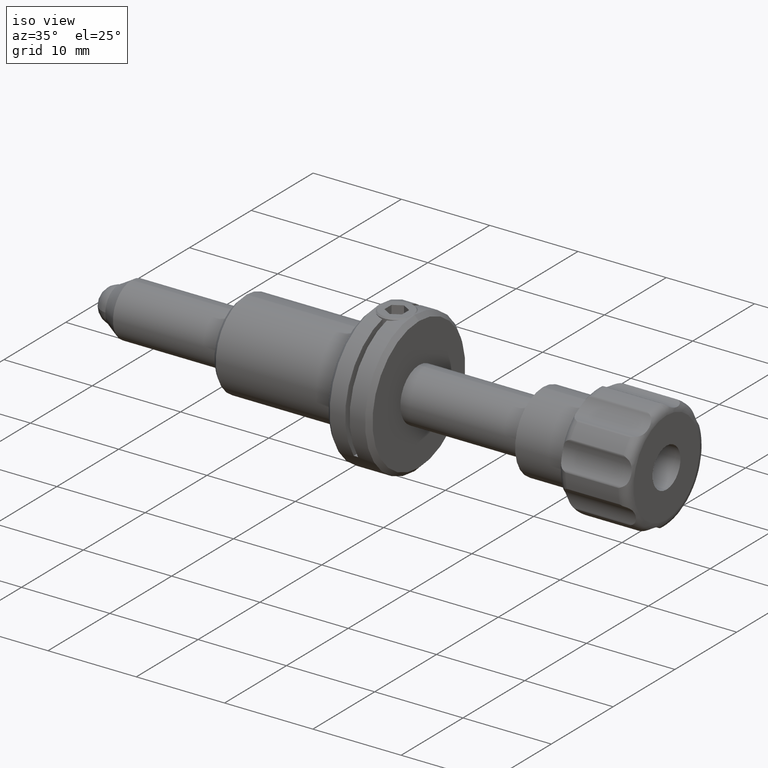
[diagram: clean part render]
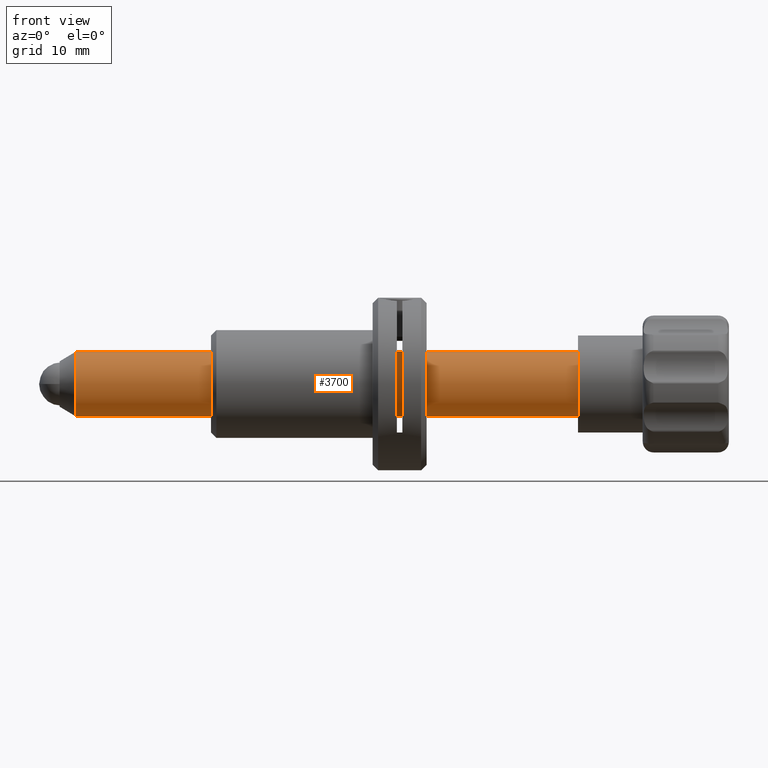
[diagram: tour spotlight — one face highlighted and labeled with its STEP entity id]
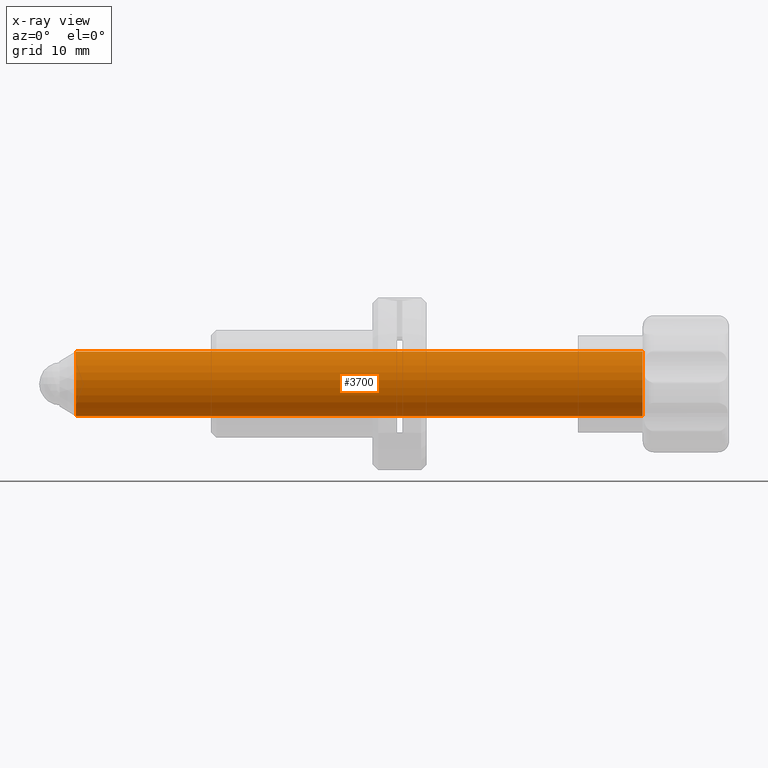
[diagram: x-ray of the same camera — body ghosted, this tour face saturated]
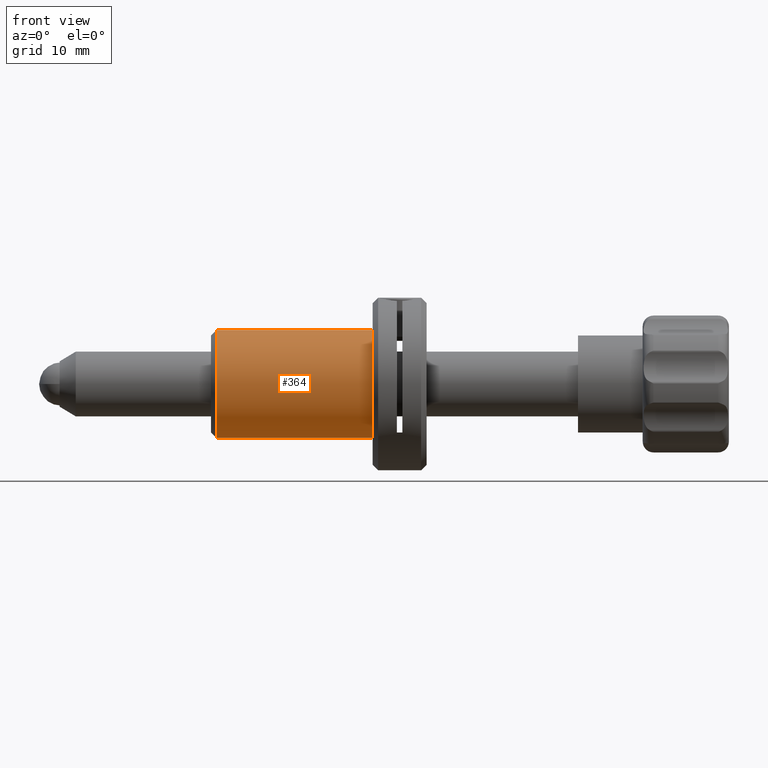
[diagram: tour spotlight — one face highlighted and labeled with its STEP entity id]
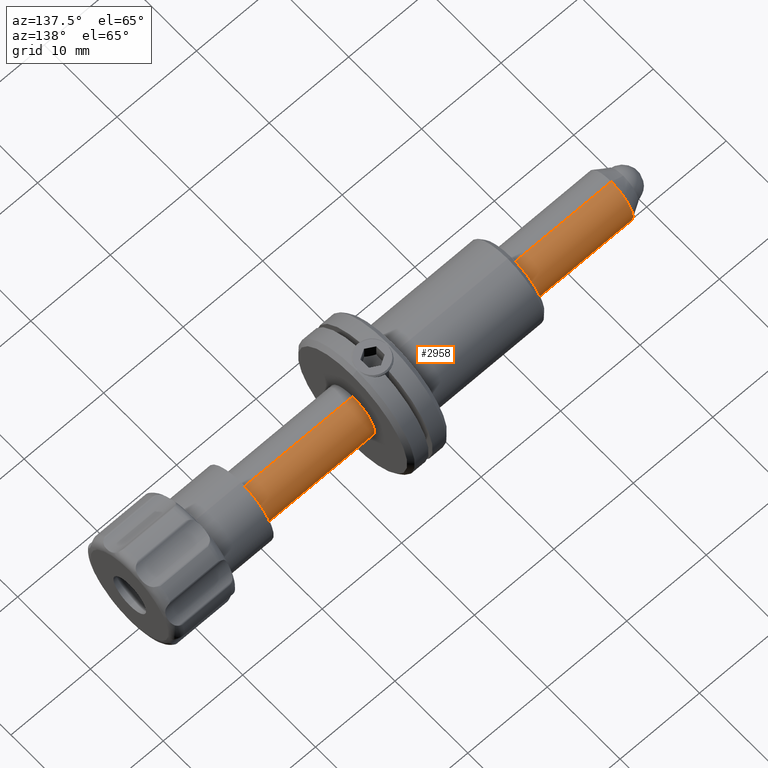
[diagram: tour spotlight — one face highlighted and labeled with its STEP entity id]
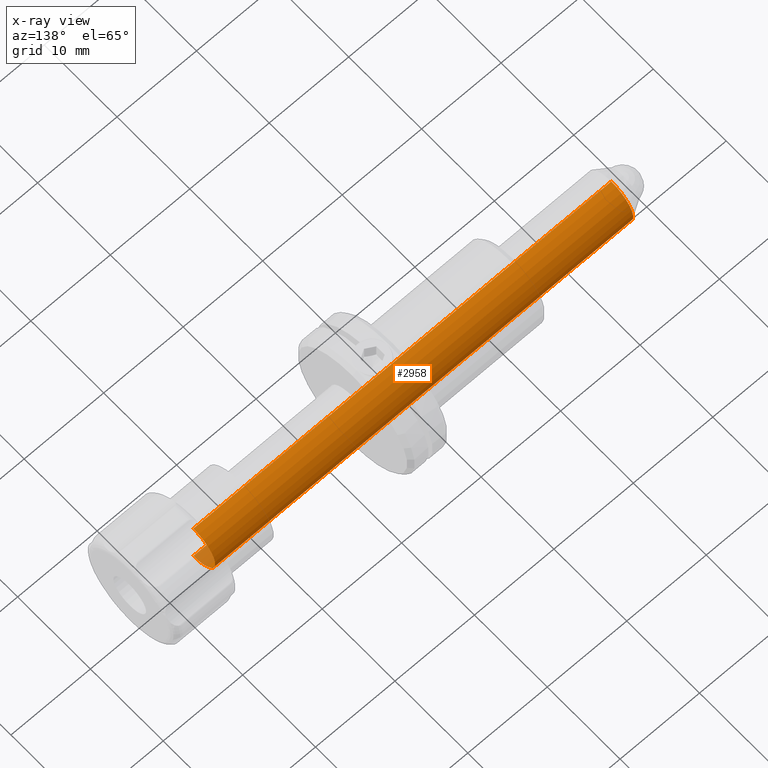
[diagram: x-ray of the same camera — body ghosted, this tour face saturated]
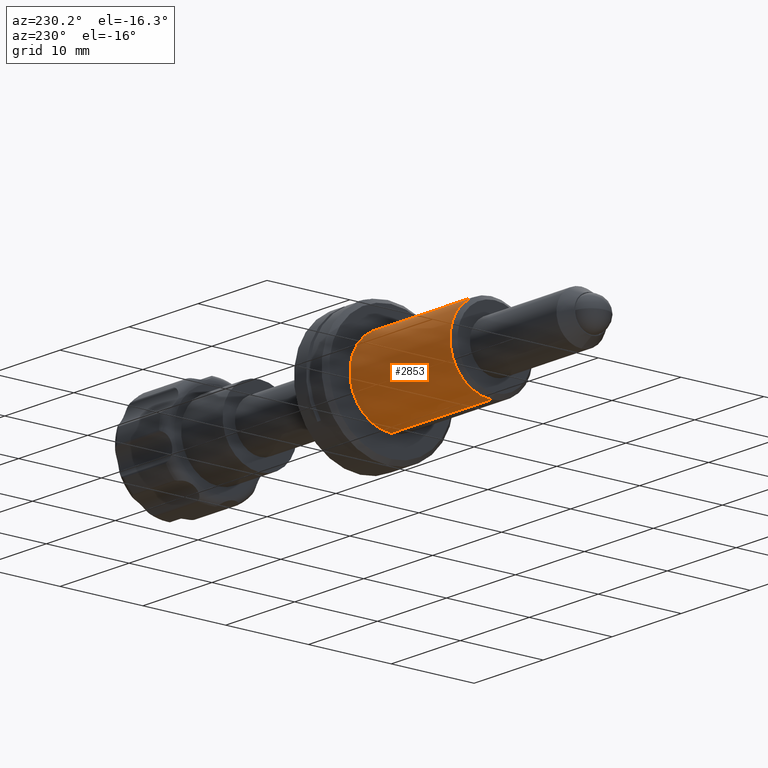
[diagram: tour spotlight — one face highlighted and labeled with its STEP entity id]
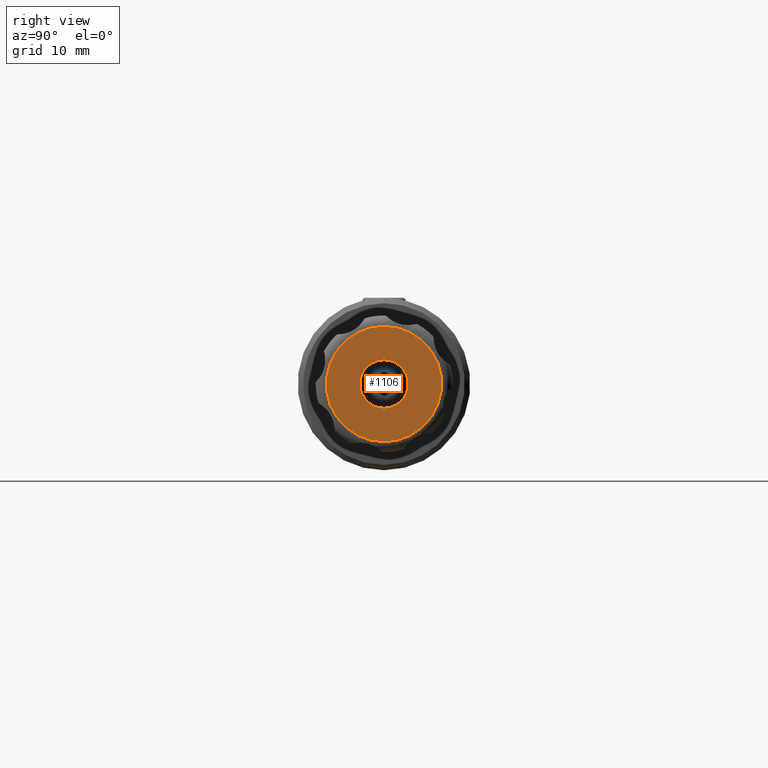
[diagram: tour spotlight — one face highlighted and labeled with its STEP entity id]
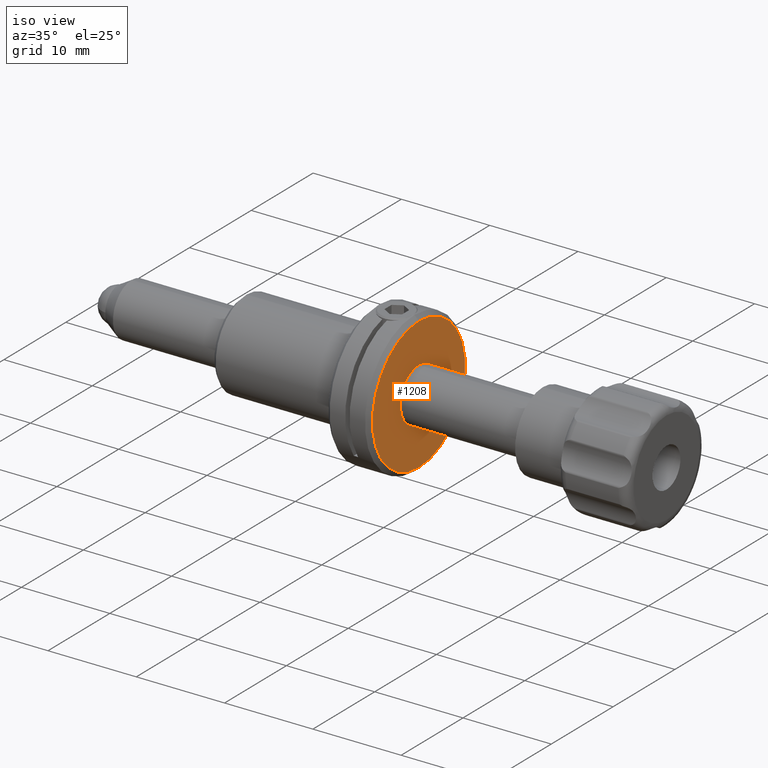
[diagram: tour spotlight — one face highlighted and labeled with its STEP entity id]
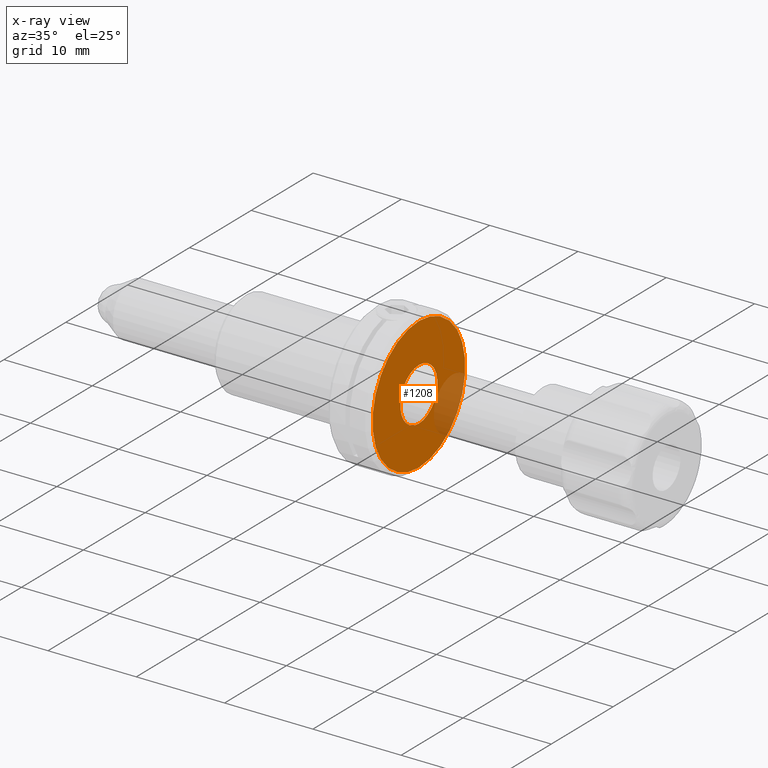
[diagram: x-ray of the same camera — body ghosted, this tour face saturated]
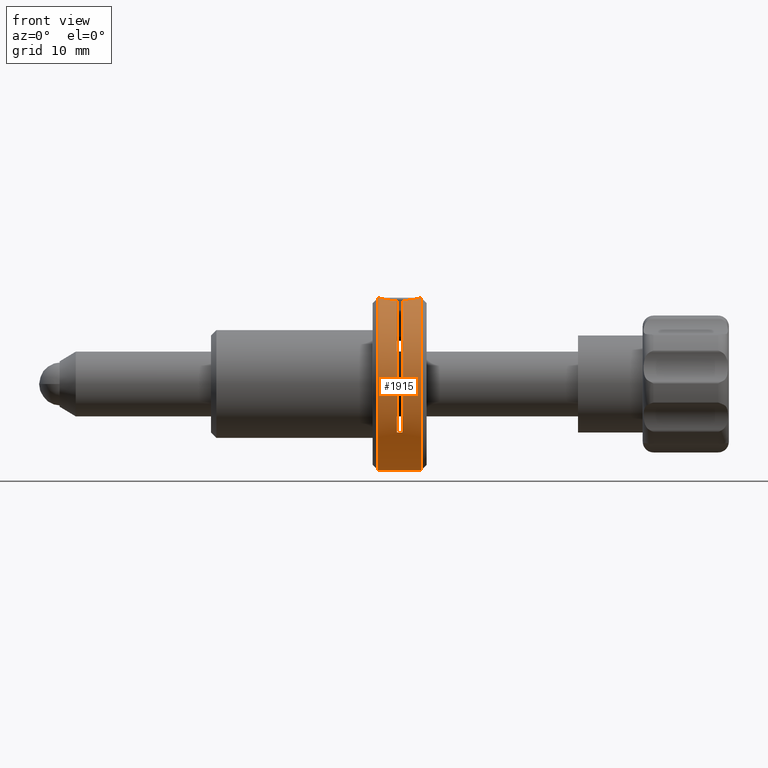
[diagram: tour spotlight — one face highlighted and labeled with its STEP entity id]
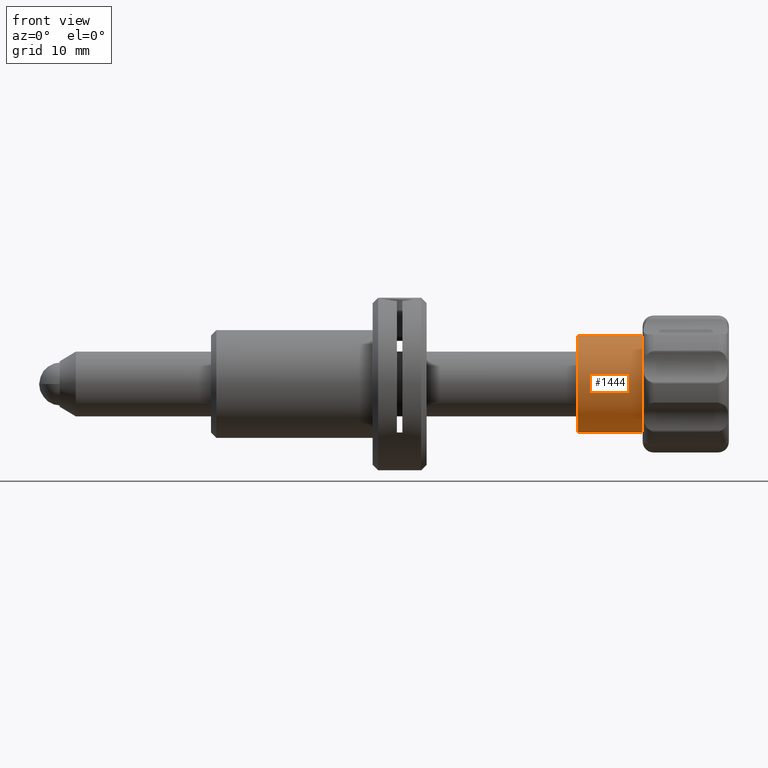
[diagram: tour spotlight — one face highlighted and labeled with its STEP entity id]
A machine part: a face-by-face anatomy tour. The part has 116 B-rep faces; the first image is the clean iso view, then the 8 largest visible faces are spotlighted one at a time (largest first), each with its STEP entity span.

Face 1 — front view, entity #3700. An x-ray twin of the same camera follows (body ghosted, this face saturated) — the face is partly hidden behind the body. In plain terms, the highlighted cylindrical surface (edge-blend (fillet) strip) has radius 3 mm, axis along (-1, -0, -0).
Definition (entity closure, byte-faithful):
#62 = EDGE_CURVE ( 'NONE', #2686, #3768, #2952, .T. ) ;
#250 = DIRECTION ( 'NONE',  ( 0.000000000000000000, 0.000000000000000000, 1.000000000000000000 ) ) ;
#330 = ORIENTED_EDGE ( 'NONE', *, *, #1630, .F. ) ;
#379 = CARTESIAN_POINT ( 'NONE',  ( 27.05000000000000426, 0.000000000000000000, 3.000000000000000000 ) ) ;
#594 = CARTESIAN_POINT ( 'NONE',  ( -25.55000000000000071, 3.673940397442059868E-16, 3.000000000000000000 ) ) ;
#830 = EDGE_LOOP ( 'NONE', ( #330, #3228, #2825, #1709 ) ) ;
#1361 = DIRECTION ( 'NONE',  ( -1.000000000000000000, -0.000000000000000000, -0.000000000000000000 ) ) ;
#1470 = CARTESIAN_POINT ( 'NONE',  ( -25.55000000000000071, 0.000000000000000000, 0.000000000000000000 ) ) ;
#1481 = CYLINDRICAL_SURFACE ( 'NONE', #1970, 3.000000000000000000 ) ;
#1573 = AXIS2_PLACEMENT_3D ( 'NONE', #2303, #3176, #1977 ) ;
#1630 = EDGE_CURVE ( 'NONE', #2686, #2643, #3038, .T. ) ;
#1709 = ORIENTED_EDGE ( 'NONE', *, *, #1978, .F. ) ;
#1970 = AXIS2_PLACEMENT_3D ( 'NONE', #3497, #2934, #250 ) ;
#1977 = DIRECTION ( 'NONE',  ( 0.000000000000000000, 0.000000000000000000, 1.000000000000000000 ) ) ;
#1978 = EDGE_CURVE ( 'NONE', #2643, #3675, #2809, .T. ) ;
#2146 = CARTESIAN_POINT ( 'NONE',  ( -45.53911735205616651, 3.673940397442059868E-16, -3.000000000000000000 ) ) ;
#2177 = VECTOR ( 'NONE', #3630, 1000.000000000000000 ) ;
#2226 = LINE ( 'NONE', #3397, #2734 ) ;
#2303 = CARTESIAN_POINT ( 'NONE',  ( 27.05000000000000426, 0.000000000000000000, 0.000000000000000000 ) ) ;
#2639 = CARTESIAN_POINT ( 'NONE',  ( 27.05000000000000426, 3.673940397442059868E-16, -3.000000000000000000 ) ) ;
#2643 = VERTEX_POINT ( 'NONE', #2657 ) ;
#2657 = CARTESIAN_POINT ( 'NONE',  ( -25.55000000000000071, 0.000000000000000000, -3.000000000000000000 ) ) ;
#2686 = VERTEX_POINT ( 'NONE', #2639 ) ;
#2734 = VECTOR ( 'NONE', #1361, 1000.000000000000000 ) ;
#2809 = CIRCLE ( 'NONE', #2992, 3.000000000000000000 ) ;
#2825 = ORIENTED_EDGE ( 'NONE', *, *, #3546, .T. ) ;
#2900 = DIRECTION ( 'NONE',  ( -1.000000000000000000, -0.000000000000000000, -0.000000000000000000 ) ) ;
#2934 = DIRECTION ( 'NONE',  ( -1.000000000000000000, -0.000000000000000000, -0.000000000000000000 ) ) ;
#2952 = CIRCLE ( 'NONE', #1573, 3.000000000000000000 ) ;
#2969 = FACE_OUTER_BOUND ( 'NONE', #830, .T. ) ;
#2992 = AXIS2_PLACEMENT_3D ( 'NONE', #1470, #2900, #3523 ) ;
#3038 = LINE ( 'NONE', #2146, #2177 ) ;
#3176 = DIRECTION ( 'NONE',  ( -1.000000000000000000, -0.000000000000000000, -0.000000000000000000 ) ) ;
#3228 = ORIENTED_EDGE ( 'NONE', *, *, #62, .T. ) ;
#3397 = CARTESIAN_POINT ( 'NONE',  ( -45.53911735205616651, 0.000000000000000000, 3.000000000000000000 ) ) ;
#3497 = CARTESIAN_POINT ( 'NONE',  ( -45.53911735205616651, 0.000000000000000000, 0.000000000000000000 ) ) ;
#3523 = DIRECTION ( 'NONE',  ( 0.000000000000000000, 0.000000000000000000, 1.000000000000000000 ) ) ;
#3546 = EDGE_CURVE ( 'NONE', #3768, #3675, #2226, .T. ) ;
#3630 = DIRECTION ( 'NONE',  ( -1.000000000000000000, -0.000000000000000000, -0.000000000000000000 ) ) ;
#3675 = VERTEX_POINT ( 'NONE', #594 ) ;
#3700 = ADVANCED_FACE ( 'NONE', ( #2969 ), #1481, .T. ) ;
#3768 = VERTEX_POINT ( 'NONE', #379 ) ;

Face 2 — front view, entity #364. In plain terms, the highlighted cylindrical surface (partial cylindrical patch) has radius 5 mm, axis along (-1, 0, 0).
Definition (entity closure, byte-faithful):
#76 = CYLINDRICAL_SURFACE ( 'NONE', #682, 4.999999999999999112 ) ;
#180 = ORIENTED_EDGE ( 'NONE', *, *, #3211, .F. ) ;
#195 = DIRECTION ( 'NONE',  ( -1.000000000000000000, 0.000000000000000000, 0.000000000000000000 ) ) ;
#357 = CARTESIAN_POINT ( 'NONE',  ( -30.35644179797201048, 0.000000000000000000, 0.000000000000000000 ) ) ;
#364 = ADVANCED_FACE ( 'NONE', ( #2180 ), #76, .T. ) ;
#509 = DIRECTION ( 'NONE',  ( 0.000000000000000000, 0.000000000000000000, -1.000000000000000000 ) ) ;
#599 = CARTESIAN_POINT ( 'NONE',  ( 2.000000000000005329, -6.123233995736766282E-16, 5.000000000000000000 ) ) ;
#682 = AXIS2_PLACEMENT_3D ( 'NONE', #357, #1551, #2758 ) ;
#818 = LINE ( 'NONE', #2345, #3599 ) ;
#872 = AXIS2_PLACEMENT_3D ( 'NONE', #3033, #1543, #1848 ) ;
#958 = CARTESIAN_POINT ( 'NONE',  ( 2.000000000000005329, 0.000000000000000000, -5.000000000000000000 ) ) ;
#959 = ORIENTED_EDGE ( 'NONE', *, *, #2644, .T. ) ;
#1024 = VERTEX_POINT ( 'NONE', #2681 ) ;
#1056 = AXIS2_PLACEMENT_3D ( 'NONE', #2001, #2327, #509 ) ;
#1366 = CARTESIAN_POINT ( 'NONE',  ( -30.35644179797201048, 0.000000000000000000, -4.999999999999999112 ) ) ;
#1383 = DIRECTION ( 'NONE',  ( -1.000000000000000000, 0.000000000000000000, 0.000000000000000000 ) ) ;
#1543 = DIRECTION ( 'NONE',  ( 1.000000000000000000, 0.000000000000000000, 0.000000000000000000 ) ) ;
#1551 = DIRECTION ( 'NONE',  ( -1.000000000000000000, 0.000000000000000000, 0.000000000000000000 ) ) ;
#1655 = LINE ( 'NONE', #1366, #1838 ) ;
#1838 = VECTOR ( 'NONE', #195, 1000.000000000000000 ) ;
#1848 = DIRECTION ( 'NONE',  ( 0.000000000000000000, 0.000000000000000000, 1.000000000000000000 ) ) ;
#2001 = CARTESIAN_POINT ( 'NONE',  ( 2.000000000000005329, 0.000000000000000000, 0.000000000000000000 ) ) ;
#2160 = EDGE_CURVE ( 'NONE', #1024, #2967, #3618, .T. ) ;
#2180 = FACE_OUTER_BOUND ( 'NONE', #3286, .T. ) ;
#2327 = DIRECTION ( 'NONE',  ( -1.000000000000000000, 0.000000000000000000, 0.000000000000000000 ) ) ;
#2345 = CARTESIAN_POINT ( 'NONE',  ( -30.35644179797201048, -6.123233995736765296E-16, 4.999999999999999112 ) ) ;
#2644 = EDGE_CURVE ( 'NONE', #3441, #3344, #2939, .T. ) ;
#2681 = CARTESIAN_POINT ( 'NONE',  ( -12.49999999999999645, -6.123233995736765296E-16, 4.999999999999999112 ) ) ;
#2715 = ORIENTED_EDGE ( 'NONE', *, *, #2160, .T. ) ;
#2718 = EDGE_CURVE ( 'NONE', #3344, #1024, #818, .T. ) ;
#2758 = DIRECTION ( 'NONE',  ( 0.000000000000000000, 0.000000000000000000, -1.000000000000000000 ) ) ;
#2939 = CIRCLE ( 'NONE', #1056, 5.000000000000000000 ) ;
#2967 = VERTEX_POINT ( 'NONE', #3566 ) ;
#2986 = ORIENTED_EDGE ( 'NONE', *, *, #2718, .T. ) ;
#3033 = CARTESIAN_POINT ( 'NONE',  ( -12.49999999999999645, 0.000000000000000000, 0.000000000000000000 ) ) ;
#3211 = EDGE_CURVE ( 'NONE', #3441, #2967, #1655, .T. ) ;
#3286 = EDGE_LOOP ( 'NONE', ( #959, #2986, #2715, #180 ) ) ;
#3344 = VERTEX_POINT ( 'NONE', #599 ) ;
#3441 = VERTEX_POINT ( 'NONE', #958 ) ;
#3566 = CARTESIAN_POINT ( 'NONE',  ( -12.49999999999999645, 0.000000000000000000, -4.999999999999999112 ) ) ;
#3599 = VECTOR ( 'NONE', #1383, 1000.000000000000000 ) ;
#3618 = CIRCLE ( 'NONE', #872, 4.999999999999999112 ) ;

Face 3 — auxiliary view, entity #2958. An x-ray twin of the same camera follows (body ghosted, this face saturated) — the face is partly hidden behind the body. In plain terms, the highlighted cylindrical surface (edge-blend (fillet) strip) has radius 3 mm, axis along (-1, -0, -0).
Definition (entity closure, byte-faithful):
#14 = CYLINDRICAL_SURFACE ( 'NONE', #3468, 3.000000000000000000 ) ;
#41 = CARTESIAN_POINT ( 'NONE',  ( 27.05000000000000426, 0.000000000000000000, 0.000000000000000000 ) ) ;
#241 = EDGE_LOOP ( 'NONE', ( #1831, #1005, #1092, #2134 ) ) ;
#259 = FACE_OUTER_BOUND ( 'NONE', #241, .T. ) ;
#379 = CARTESIAN_POINT ( 'NONE',  ( 27.05000000000000426, 0.000000000000000000, 3.000000000000000000 ) ) ;
#594 = CARTESIAN_POINT ( 'NONE',  ( -25.55000000000000071, 3.673940397442059868E-16, 3.000000000000000000 ) ) ;
#622 = DIRECTION ( 'NONE',  ( 0.000000000000000000, 0.000000000000000000, 1.000000000000000000 ) ) ;
#1005 = ORIENTED_EDGE ( 'NONE', *, *, #1630, .T. ) ;
#1091 = AXIS2_PLACEMENT_3D ( 'NONE', #3325, #1564, #2454 ) ;
#1092 = ORIENTED_EDGE ( 'NONE', *, *, #3086, .F. ) ;
#1361 = DIRECTION ( 'NONE',  ( -1.000000000000000000, -0.000000000000000000, -0.000000000000000000 ) ) ;
#1425 = EDGE_CURVE ( 'NONE', #3768, #2686, #3379, .T. ) ;
#1521 = DIRECTION ( 'NONE',  ( 0.000000000000000000, 0.000000000000000000, 1.000000000000000000 ) ) ;
#1564 = DIRECTION ( 'NONE',  ( -1.000000000000000000, -0.000000000000000000, -0.000000000000000000 ) ) ;
#1630 = EDGE_CURVE ( 'NONE', #2686, #2643, #3038, .T. ) ;
#1762 = DIRECTION ( 'NONE',  ( -1.000000000000000000, -0.000000000000000000, -0.000000000000000000 ) ) ;
#1831 = ORIENTED_EDGE ( 'NONE', *, *, #1425, .T. ) ;
#2134 = ORIENTED_EDGE ( 'NONE', *, *, #3546, .F. ) ;
#2146 = CARTESIAN_POINT ( 'NONE',  ( -45.53911735205616651, 3.673940397442059868E-16, -3.000000000000000000 ) ) ;
#2177 = VECTOR ( 'NONE', #3630, 1000.000000000000000 ) ;
#2226 = LINE ( 'NONE', #3397, #2734 ) ;
#2454 = DIRECTION ( 'NONE',  ( 0.000000000000000000, 0.000000000000000000, 1.000000000000000000 ) ) ;
#2512 = AXIS2_PLACEMENT_3D ( 'NONE', #41, #2699, #1521 ) ;
#2537 = CIRCLE ( 'NONE', #1091, 3.000000000000000000 ) ;
#2639 = CARTESIAN_POINT ( 'NONE',  ( 27.05000000000000426, 3.673940397442059868E-16, -3.000000000000000000 ) ) ;
#2643 = VERTEX_POINT ( 'NONE', #2657 ) ;
#2657 = CARTESIAN_POINT ( 'NONE',  ( -25.55000000000000071, 0.000000000000000000, -3.000000000000000000 ) ) ;
#2686 = VERTEX_POINT ( 'NONE', #2639 ) ;
#2699 = DIRECTION ( 'NONE',  ( -1.000000000000000000, -0.000000000000000000, -0.000000000000000000 ) ) ;
#2734 = VECTOR ( 'NONE', #1361, 1000.000000000000000 ) ;
#2958 = ADVANCED_FACE ( 'NONE', ( #259 ), #14, .T. ) ;
#3038 = LINE ( 'NONE', #2146, #2177 ) ;
#3086 = EDGE_CURVE ( 'NONE', #3675, #2643, #2537, .T. ) ;
#3325 = CARTESIAN_POINT ( 'NONE',  ( -25.55000000000000071, 0.000000000000000000, 0.000000000000000000 ) ) ;
#3379 = CIRCLE ( 'NONE', #2512, 3.000000000000000000 ) ;
#3397 = CARTESIAN_POINT ( 'NONE',  ( -45.53911735205616651, 0.000000000000000000, 3.000000000000000000 ) ) ;
#3468 = AXIS2_PLACEMENT_3D ( 'NONE', #3585, #1762, #622 ) ;
#3546 = EDGE_CURVE ( 'NONE', #3768, #3675, #2226, .T. ) ;
#3585 = CARTESIAN_POINT ( 'NONE',  ( -45.53911735205616651, 0.000000000000000000, 0.000000000000000000 ) ) ;
#3630 = DIRECTION ( 'NONE',  ( -1.000000000000000000, -0.000000000000000000, -0.000000000000000000 ) ) ;
#3675 = VERTEX_POINT ( 'NONE', #594 ) ;
#3768 = VERTEX_POINT ( 'NONE', #379 ) ;

Face 4 — auxiliary view, entity #2853. In plain terms, the highlighted cylindrical surface (partial cylindrical patch) has radius 5 mm, axis along (-1, 0, 0).
Definition (entity closure, byte-faithful):
#166 = DIRECTION ( 'NONE',  ( -1.000000000000000000, 0.000000000000000000, 0.000000000000000000 ) ) ;
#195 = DIRECTION ( 'NONE',  ( -1.000000000000000000, 0.000000000000000000, 0.000000000000000000 ) ) ;
#269 = EDGE_CURVE ( 'NONE', #2967, #1024, #3295, .T. ) ;
#420 = AXIS2_PLACEMENT_3D ( 'NONE', #986, #928, #3332 ) ;
#593 = AXIS2_PLACEMENT_3D ( 'NONE', #1214, #1152, #1789 ) ;
#599 = CARTESIAN_POINT ( 'NONE',  ( 2.000000000000005329, -6.123233995736766282E-16, 5.000000000000000000 ) ) ;
#818 = LINE ( 'NONE', #2345, #3599 ) ;
#928 = DIRECTION ( 'NONE',  ( 1.000000000000000000, 0.000000000000000000, 0.000000000000000000 ) ) ;
#958 = CARTESIAN_POINT ( 'NONE',  ( 2.000000000000005329, 0.000000000000000000, -5.000000000000000000 ) ) ;
#986 = CARTESIAN_POINT ( 'NONE',  ( -12.49999999999999645, 0.000000000000000000, 0.000000000000000000 ) ) ;
#1024 = VERTEX_POINT ( 'NONE', #2681 ) ;
#1152 = DIRECTION ( 'NONE',  ( -1.000000000000000000, 0.000000000000000000, 0.000000000000000000 ) ) ;
#1214 = CARTESIAN_POINT ( 'NONE',  ( 2.000000000000005329, 0.000000000000000000, 0.000000000000000000 ) ) ;
#1354 = DIRECTION ( 'NONE',  ( 0.000000000000000000, 0.000000000000000000, -1.000000000000000000 ) ) ;
#1366 = CARTESIAN_POINT ( 'NONE',  ( -30.35644179797201048, 0.000000000000000000, -4.999999999999999112 ) ) ;
#1383 = DIRECTION ( 'NONE',  ( -1.000000000000000000, 0.000000000000000000, 0.000000000000000000 ) ) ;
#1655 = LINE ( 'NONE', #1366, #1838 ) ;
#1704 = CARTESIAN_POINT ( 'NONE',  ( -30.35644179797201048, 0.000000000000000000, 0.000000000000000000 ) ) ;
#1783 = CIRCLE ( 'NONE', #593, 5.000000000000000000 ) ;
#1789 = DIRECTION ( 'NONE',  ( 0.000000000000000000, 0.000000000000000000, -1.000000000000000000 ) ) ;
#1836 = AXIS2_PLACEMENT_3D ( 'NONE', #1704, #166, #1354 ) ;
#1838 = VECTOR ( 'NONE', #195, 1000.000000000000000 ) ;
#2030 = ORIENTED_EDGE ( 'NONE', *, *, #2718, .F. ) ;
#2345 = CARTESIAN_POINT ( 'NONE',  ( -30.35644179797201048, -6.123233995736765296E-16, 4.999999999999999112 ) ) ;
#2681 = CARTESIAN_POINT ( 'NONE',  ( -12.49999999999999645, -6.123233995736765296E-16, 4.999999999999999112 ) ) ;
#2718 = EDGE_CURVE ( 'NONE', #3344, #1024, #818, .T. ) ;
#2730 = ORIENTED_EDGE ( 'NONE', *, *, #269, .T. ) ;
#2853 = ADVANCED_FACE ( 'NONE', ( #3508 ), #3446, .T. ) ;
#2967 = VERTEX_POINT ( 'NONE', #3566 ) ;
#2988 = ORIENTED_EDGE ( 'NONE', *, *, #3301, .T. ) ;
#3010 = EDGE_LOOP ( 'NONE', ( #2030, #2988, #3470, #2730 ) ) ;
#3211 = EDGE_CURVE ( 'NONE', #3441, #2967, #1655, .T. ) ;
#3295 = CIRCLE ( 'NONE', #420, 4.999999999999999112 ) ;
#3301 = EDGE_CURVE ( 'NONE', #3344, #3441, #1783, .T. ) ;
#3332 = DIRECTION ( 'NONE',  ( 0.000000000000000000, 0.000000000000000000, 1.000000000000000000 ) ) ;
#3344 = VERTEX_POINT ( 'NONE', #599 ) ;
#3441 = VERTEX_POINT ( 'NONE', #958 ) ;
#3446 = CYLINDRICAL_SURFACE ( 'NONE', #1836, 4.999999999999999112 ) ;
#3470 = ORIENTED_EDGE ( 'NONE', *, *, #3211, .T. ) ;
#3508 = FACE_OUTER_BOUND ( 'NONE', #3010, .T. ) ;
#3566 = CARTESIAN_POINT ( 'NONE',  ( -12.49999999999999645, 0.000000000000000000, -4.999999999999999112 ) ) ;
#3599 = VECTOR ( 'NONE', #1383, 1000.000000000000000 ) ;

Face 5 — right view, entity #1106. In plain terms, the highlighted planar face has unit normal (1, -0, -0).
Definition (entity closure, byte-faithful):
#39 = EDGE_LOOP ( 'NONE', ( #2302, #1680 ) ) ;
#139 = CIRCLE ( 'NONE', #440, 2.250000000000012434 ) ;
#143 = EDGE_CURVE ( 'NONE', #1951, #3822, #202, .T. ) ;
#202 = CIRCLE ( 'NONE', #3322, 5.350000000000028955 ) ;
#348 = DIRECTION ( 'NONE',  ( 1.000000000000000000, -3.443357432102106769E-17, -2.211074569426361915E-16 ) ) ;
#378 = CIRCLE ( 'NONE', #3634, 5.350000000000028955 ) ;
#401 = CARTESIAN_POINT ( 'NONE',  ( 35.04999999999994742, -2.754685945681670131E-16, -1.768859655541062513E-15 ) ) ;
#440 = AXIS2_PLACEMENT_3D ( 'NONE', #662, #1196, #3603 ) ;
#458 = DIRECTION ( 'NONE',  ( 2.211074569426305708E-16, -5.204170427930323446E-18, 1.000000000000000000 ) ) ;
#547 = CIRCLE ( 'NONE', #1181, 2.250000000000012434 ) ;
#656 = CARTESIAN_POINT ( 'NONE',  ( 35.04999999999994742, -2.754685945681670131E-16, -1.768859655541062513E-15 ) ) ;
#662 = CARTESIAN_POINT ( 'NONE',  ( 35.04999999999994742, -2.754685945681670131E-16, -1.768859655541062513E-15 ) ) ;
#790 = VERTEX_POINT ( 'NONE', #3482 ) ;
#810 = CARTESIAN_POINT ( 'NONE',  ( 35.04999999999994742, -3.033109063575943922E-16, 5.350000000000027178 ) ) ;
#821 = AXIS2_PLACEMENT_3D ( 'NONE', #401, #2191, #458 ) ;
#837 = DIRECTION ( 'NONE',  ( 1.000000000000000000, -3.443357432102106769E-17, -2.211074569426361915E-16 ) ) ;
#852 = CARTESIAN_POINT ( 'NONE',  ( 35.04999999999994742, -4.187872307899040287E-16, -2.250000000000001776 ) ) ;
#934 = DIRECTION ( 'NONE',  ( 0.000000000000000000, -5.204170427930324216E-18, 1.000000000000000000 ) ) ;
#967 = EDGE_CURVE ( 'NONE', #790, #1546, #139, .T. ) ;
#1106 = ADVANCED_FACE ( 'NONE', ( #1943, #1581 ), #2836, .T. ) ;
#1181 = AXIS2_PLACEMENT_3D ( 'NONE', #2995, #348, #1525 ) ;
#1196 = DIRECTION ( 'NONE',  ( 1.000000000000000000, -3.443357432102106769E-17, -2.211074569426361915E-16 ) ) ;
#1343 = EDGE_CURVE ( 'NONE', #3822, #1951, #378, .T. ) ;
#1525 = DIRECTION ( 'NONE',  ( 0.000000000000000000, -5.204170427930332690E-18, 1.000000000000000000 ) ) ;
#1546 = VERTEX_POINT ( 'NONE', #852 ) ;
#1581 = FACE_OUTER_BOUND ( 'NONE', #39, .T. ) ;
#1680 = ORIENTED_EDGE ( 'NONE', *, *, #143, .T. ) ;
#1730 = CARTESIAN_POINT ( 'NONE',  ( 35.04999999999994742, -2.754685945681670131E-16, -1.768859655541062513E-15 ) ) ;
#1943 = FACE_BOUND ( 'NONE', #2913, .T. ) ;
#1951 = VERTEX_POINT ( 'NONE', #2354 ) ;
#2033 = EDGE_CURVE ( 'NONE', #1546, #790, #547, .T. ) ;
#2191 = DIRECTION ( 'NONE',  ( 1.000000000000000000, -3.443357432102106769E-17, -2.211074569426305708E-16 ) ) ;
#2302 = ORIENTED_EDGE ( 'NONE', *, *, #1343, .T. ) ;
#2354 = CARTESIAN_POINT ( 'NONE',  ( 35.04999999999994742, -9.442257879054620126E-16, -5.350000000000001421 ) ) ;
#2698 = ORIENTED_EDGE ( 'NONE', *, *, #2033, .F. ) ;
#2740 = ORIENTED_EDGE ( 'NONE', *, *, #967, .F. ) ;
#2762 = DIRECTION ( 'NONE',  ( 1.000000000000000000, -3.443357432102106769E-17, -2.211074569426361915E-16 ) ) ;
#2836 = PLANE ( 'NONE',  #821 ) ;
#2913 = EDGE_LOOP ( 'NONE', ( #2740, #2698 ) ) ;
#2968 = DIRECTION ( 'NONE',  ( 0.000000000000000000, -5.204170427930324216E-18, 1.000000000000000000 ) ) ;
#2995 = CARTESIAN_POINT ( 'NONE',  ( 35.04999999999994742, -2.754685945681670131E-16, -1.768859655541062513E-15 ) ) ;
#3322 = AXIS2_PLACEMENT_3D ( 'NONE', #1730, #837, #2968 ) ;
#3482 = CARTESIAN_POINT ( 'NONE',  ( 35.04999999999994742, -2.871779780310103624E-16, 2.250000000000010658 ) ) ;
#3603 = DIRECTION ( 'NONE',  ( 0.000000000000000000, -5.204170427930332690E-18, 1.000000000000000000 ) ) ;
#3634 = AXIS2_PLACEMENT_3D ( 'NONE', #656, #2762, #934 ) ;
#3822 = VERTEX_POINT ( 'NONE', #810 ) ;

Face 6 — iso view, entity #1208. An x-ray twin of the same camera follows (body ghosted, this face saturated) — the face is partly hidden behind the body. In plain terms, the highlighted planar face has unit normal (-1, 0, 0).
Definition (entity closure, byte-faithful):
#234 = FACE_OUTER_BOUND ( 'NONE', #1369, .T. ) ;
#270 = DIRECTION ( 'NONE',  ( -1.000000000000000000, 0.000000000000000000, 0.000000000000000000 ) ) ;
#372 = ORIENTED_EDGE ( 'NONE', *, *, #1758, .T. ) ;
#391 = ORIENTED_EDGE ( 'NONE', *, *, #1678, .T. ) ;
#418 = CIRCLE ( 'NONE', #2555, 7.499999999999994671 ) ;
#478 = CARTESIAN_POINT ( 'NONE',  ( 7.000000000000002665, 0.000000000000000000, 2.999999999999985789 ) ) ;
#565 = DIRECTION ( 'NONE',  ( -1.000000000000000000, 0.000000000000000000, 0.000000000000000000 ) ) ;
#748 = CARTESIAN_POINT ( 'NONE',  ( 7.000000000000002665, 0.000000000000000000, 0.000000000000000000 ) ) ;
#803 = AXIS2_PLACEMENT_3D ( 'NONE', #748, #3462, #2588 ) ;
#1115 = CARTESIAN_POINT ( 'NONE',  ( 7.000000000000002665, -3.673940397442041626E-16, -2.999999999999985789 ) ) ;
#1146 = CARTESIAN_POINT ( 'NONE',  ( 7.000000000000002665, -9.491012693391983843E-16, 7.499999999999994671 ) ) ;
#1150 = CARTESIAN_POINT ( 'NONE',  ( 7.000000000000002665, 0.000000000000000000, 0.000000000000000000 ) ) ;
#1208 = ADVANCED_FACE ( 'NONE', ( #2287, #234 ), #2309, .F. ) ;
#1238 = VERTEX_POINT ( 'NONE', #2896 ) ;
#1369 = EDGE_LOOP ( 'NONE', ( #3092, #372 ) ) ;
#1411 = CARTESIAN_POINT ( 'NONE',  ( 7.000000000000002665, 0.000000000000000000, 0.000000000000000000 ) ) ;
#1678 = EDGE_CURVE ( 'NONE', #1911, #2261, #2867, .T. ) ;
#1747 = EDGE_CURVE ( 'NONE', #1238, #2710, #2301, .T. ) ;
#1758 = EDGE_CURVE ( 'NONE', #2710, #1238, #418, .T. ) ;
#1853 = DIRECTION ( 'NONE',  ( -1.000000000000000000, 0.000000000000000000, 0.000000000000000000 ) ) ;
#1911 = VERTEX_POINT ( 'NONE', #1115 ) ;
#1989 = EDGE_CURVE ( 'NONE', #2261, #1911, #3173, .T. ) ;
#2124 = EDGE_LOOP ( 'NONE', ( #3395, #391 ) ) ;
#2217 = DIRECTION ( 'NONE',  ( 1.000000000000000000, -0.000000000000000000, -0.000000000000000000 ) ) ;
#2261 = VERTEX_POINT ( 'NONE', #478 ) ;
#2272 = CARTESIAN_POINT ( 'NONE',  ( 7.000000000000002665, 0.000000000000000000, 0.000000000000000000 ) ) ;
#2287 = FACE_BOUND ( 'NONE', #2124, .T. ) ;
#2301 = CIRCLE ( 'NONE', #803, 7.499999999999994671 ) ;
#2309 = PLANE ( 'NONE',  #2887 ) ;
#2417 = DIRECTION ( 'NONE',  ( 0.000000000000000000, 0.000000000000000000, -1.000000000000000000 ) ) ;
#2555 = AXIS2_PLACEMENT_3D ( 'NONE', #2272, #2217, #3694 ) ;
#2588 = DIRECTION ( 'NONE',  ( 0.000000000000000000, 0.000000000000000000, -1.000000000000000000 ) ) ;
#2609 = DIRECTION ( 'NONE',  ( 0.000000000000000000, 0.000000000000000000, -1.000000000000000000 ) ) ;
#2710 = VERTEX_POINT ( 'NONE', #1146 ) ;
#2789 = CARTESIAN_POINT ( 'NONE',  ( 7.000000000000002665, 0.000000000000000000, 0.000000000000000000 ) ) ;
#2867 = CIRCLE ( 'NONE', #3231, 2.999999999999985345 ) ;
#2869 = AXIS2_PLACEMENT_3D ( 'NONE', #1411, #565, #2609 ) ;
#2887 = AXIS2_PLACEMENT_3D ( 'NONE', #1150, #270, #3500 ) ;
#2896 = CARTESIAN_POINT ( 'NONE',  ( 7.000000000000002665, 0.000000000000000000, -7.499999999999994671 ) ) ;
#3092 = ORIENTED_EDGE ( 'NONE', *, *, #1747, .T. ) ;
#3173 = CIRCLE ( 'NONE', #2869, 2.999999999999985345 ) ;
#3231 = AXIS2_PLACEMENT_3D ( 'NONE', #2789, #1853, #2417 ) ;
#3395 = ORIENTED_EDGE ( 'NONE', *, *, #1989, .T. ) ;
#3462 = DIRECTION ( 'NONE',  ( 1.000000000000000000, -0.000000000000000000, -0.000000000000000000 ) ) ;
#3500 = DIRECTION ( 'NONE',  ( 0.000000000000000000, 0.000000000000000000, -1.000000000000000000 ) ) ;
#3694 = DIRECTION ( 'NONE',  ( 0.000000000000000000, 0.000000000000000000, -1.000000000000000000 ) ) ;

Face 7 — front view, entity #1915. In plain terms, the highlighted cylindrical surface (partial cylindrical patch) has radius 8 mm, axis along (-1, 0, 0).
Definition (entity closure, byte-faithful):
#22 = EDGE_CURVE ( 'NONE', #3365, #313, #695, .T. ) ;
#89 = VERTEX_POINT ( 'NONE', #2521 ) ;
#188 = ORIENTED_EDGE ( 'NONE', *, *, #2770, .T. ) ;
#255 = CARTESIAN_POINT ( 'NONE',  ( 6.500000000000002665, 0.000000000000000000, 0.000000000000000000 ) ) ;
#292 = FACE_OUTER_BOUND ( 'NONE', #2757, .T. ) ;
#313 = VERTEX_POINT ( 'NONE', #3061 ) ;
#315 = CARTESIAN_POINT ( 'NONE',  ( 2.500000000000005773, -9.797174393178825657E-16, 8.000000000000000000 ) ) ;
#351 = ORIENTED_EDGE ( 'NONE', *, *, #3232, .T. ) ;
#360 = CARTESIAN_POINT ( 'NONE',  ( 6.150000000000001243, -0.1973991827477269978, 8.000000000000001776 ) ) ;
#433 = EDGE_CURVE ( 'NONE', #3651, #2435, #3174, .T. ) ;
#459 = CARTESIAN_POINT ( 'NONE',  ( 3.529213468811087662, -1.348226414256571859, 7.886156125421282859 ) ) ;
#546 = LINE ( 'NONE', #2927, #3062 ) ;
#556 = EDGE_CURVE ( 'NONE', #89, #3268, #546, .T. ) ;
#608 = VECTOR ( 'NONE', #1607, 1000.000000000000000 ) ;
#655 = CARTESIAN_POINT ( 'NONE',  ( 5.970656199516582774, -0.7544266143313140827, 7.964794928365015458 ) ) ;
#695 = B_SPLINE_CURVE_WITH_KNOTS ( 'NONE', 3,
 ( #2446, #700, #3029, #3652, #1537, #2169, #1615, #655, #3047, #2205, #360, #1883 ),
 .UNSPECIFIED., .F., .F.,
 ( 4, 2, 2, 2, 2, 4 ),
 ( 0.008009074877206617815, 0.008592748836153654007, 0.009176422795100691934, 0.009468259774574210030, 0.009760096754047728126, 0.01034377071299476258 ),
 .UNSPECIFIED. ) ;
#700 = CARTESIAN_POINT ( 'NONE',  ( 4.942249846387278822, -1.601481657072513443, 7.838122388821649800 ) ) ;
#707 = CARTESIAN_POINT ( 'NONE',  ( 3.868425858103001325, -1.536637581384760143, 7.851618803921565970 ) ) ;
#751 = VERTEX_POINT ( 'NONE', #2374 ) ;
#756 = VECTOR ( 'NONE', #1503, 1000.000000000000000 ) ;
#792 = DIRECTION ( 'NONE',  ( -1.000000000000000000, -0.000000000000000000, 1.040834085586084257E-16 ) ) ;
#883 = CARTESIAN_POINT ( 'NONE',  ( 2.500000000000005773, 0.000000000000000000, 0.000000000000000000 ) ) ;
#975 = VECTOR ( 'NONE', #1264, 1000.000000000000000 ) ;
#988 = CIRCLE ( 'NONE', #1428, 8.000000000000000000 ) ;
#996 = CARTESIAN_POINT ( 'NONE',  ( 2.850000000000000089, -0.1949157251136275359, 7.999999999999998224 ) ) ;
#1014 = CARTESIAN_POINT ( 'NONE',  ( 4.250000000000000000, -1.630950643030010028, 7.831985699680509505 ) ) ;
#1061 = DIRECTION ( 'NONE',  ( -1.084202172485504434E-16, 0.000000000000000000, -1.000000000000000000 ) ) ;
#1264 = DIRECTION ( 'NONE',  ( -1.000000000000000000, 0.000000000000000000, 0.000000000000000000 ) ) ;
#1289 = AXIS2_PLACEMENT_3D ( 'NONE', #883, #2078, #1759 ) ;
#1309 = CARTESIAN_POINT ( 'NONE',  ( 3.374841758793661217, -1.222327932133200123, 7.907459971961007028 ) ) ;
#1368 = EDGE_CURVE ( 'NONE', #2569, #1602, #2518, .T. ) ;
#1428 = AXIS2_PLACEMENT_3D ( 'NONE', #3059, #3311, #2127 ) ;
#1445 = CARTESIAN_POINT ( 'NONE',  ( 4.250000000000001776, -6.614378277661474570, -4.500000000000000888 ) ) ;
#1451 = CARTESIAN_POINT ( 'NONE',  ( 2.500000000000005773, 0.000000000000000000, -8.000000000000000000 ) ) ;
#1503 = DIRECTION ( 'NONE',  ( -1.000000000000000000, 0.000000000000000000, 0.000000000000000000 ) ) ;
#1534 = AXIS2_PLACEMENT_3D ( 'NONE', #255, #2646, #3264 ) ;
#1537 = CARTESIAN_POINT ( 'NONE',  ( 5.624489448854313345, -1.222949446256765604, 7.907363210582356139 ) ) ;
#1560 = ORIENTED_EDGE ( 'NONE', *, *, #3263, .T. ) ;
#1602 = VERTEX_POINT ( 'NONE', #315 ) ;
#1607 = DIRECTION ( 'NONE',  ( -1.000000000000000000, 0.000000000000000000, 0.000000000000000000 ) ) ;
#1615 = CARTESIAN_POINT ( 'NONE',  ( 5.871669983389970149, -0.9222313322886663833, 7.947113132267943136 ) ) ;
#1703 = EDGE_CURVE ( 'NONE', #3365, #751, #988, .T. ) ;
#1718 = DIRECTION ( 'NONE',  ( -1.000000000000000000, 0.000000000000000000, 0.000000000000000000 ) ) ;
#1759 = DIRECTION ( 'NONE',  ( 0.000000000000000000, 0.000000000000000000, 1.000000000000000000 ) ) ;
#1794 = EDGE_CURVE ( 'NONE', #2652, #313, #1908, .T. ) ;
#1883 = CARTESIAN_POINT ( 'NONE',  ( 6.150000000000001243, -9.797174393178825657E-16, 8.000000000000000000 ) ) ;
#1908 = LINE ( 'NONE', #3133, #608 ) ;
#1912 = CARTESIAN_POINT ( 'NONE',  ( 4.250000000000000000, 0.000000000000000000, 0.000000000000000000 ) ) ;
#1915 = ADVANCED_FACE ( 'NONE', ( #292 ), #2961, .T. ) ;
#1939 = ORIENTED_EDGE ( 'NONE', *, *, #1794, .T. ) ;
#1962 = CARTESIAN_POINT ( 'NONE',  ( 2.850000000000000089, -9.797177280130657527E-16, 8.000000000000000000 ) ) ;
#2078 = DIRECTION ( 'NONE',  ( 1.000000000000000000, 0.000000000000000000, 0.000000000000000000 ) ) ;
#2127 = DIRECTION ( 'NONE',  ( -1.084202172485504434E-16, 0.000000000000000000, 1.000000000000000000 ) ) ;
#2131 = B_SPLINE_CURVE_WITH_KNOTS ( 'NONE', 3,
 ( #1962, #996, #2211, #3161, #3437, #1309, #459, #707, #2508, #1014 ),
 .UNSPECIFIED., .F., .F.,
 ( 4, 2, 2, 2, 4 ),
 ( 0.005172557741124073939, 0.005756838109633939313, 0.006341118478143803819, 0.006925398846653669192, 0.007509679215163534566 ),
 .UNSPECIFIED. ) ;
#2169 = CARTESIAN_POINT ( 'NONE',  ( 5.814116477078815848, -1.002493566982385564, 7.937285822067997820 ) ) ;
#2205 = CARTESIAN_POINT ( 'NONE',  ( 6.114168683231836710, -0.3934484169587880720, 7.992409269256697257 ) ) ;
#2211 = CARTESIAN_POINT ( 'NONE',  ( 2.885476445757543473, -0.3919443574440301115, 7.992482679703602599 ) ) ;
#2253 = EDGE_CURVE ( 'NONE', #2569, #2435, #2131, .T. ) ;
#2374 = CARTESIAN_POINT ( 'NONE',  ( 4.750000000000006217, -6.614378277661474570, -4.500000000000000888 ) ) ;
#2396 = ORIENTED_EDGE ( 'NONE', *, *, #22, .F. ) ;
#2404 = CARTESIAN_POINT ( 'NONE',  ( -30.35644179797201048, -9.797174393178825657E-16, 8.000000000000000000 ) ) ;
#2435 = VERTEX_POINT ( 'NONE', #3638 ) ;
#2446 = CARTESIAN_POINT ( 'NONE',  ( 4.750000000000000888, -1.630950643030009362, 7.831985699680509505 ) ) ;
#2498 = AXIS2_PLACEMENT_3D ( 'NONE', #1912, #792, #1061 ) ;
#2508 = CARTESIAN_POINT ( 'NONE',  ( 4.057507893649556330, -1.601444522294064310, 7.838130121852983301 ) ) ;
#2515 = LINE ( 'NONE', #3695, #975 ) ;
#2518 = LINE ( 'NONE', #2404, #756 ) ;
#2521 = CARTESIAN_POINT ( 'NONE',  ( 6.500000000000002665, 0.000000000000000000, -8.000000000000000000 ) ) ;
#2569 = VERTEX_POINT ( 'NONE', #3084 ) ;
#2623 = ORIENTED_EDGE ( 'NONE', *, *, #2253, .F. ) ;
#2646 = DIRECTION ( 'NONE',  ( -1.000000000000000000, 0.000000000000000000, 0.000000000000000000 ) ) ;
#2652 = VERTEX_POINT ( 'NONE', #3235 ) ;
#2709 = ORIENTED_EDGE ( 'NONE', *, *, #433, .T. ) ;
#2757 = EDGE_LOOP ( 'NONE', ( #1560, #1939, #2396, #3683, #188, #2709, #2623, #3728, #351, #3331 ) ) ;
#2770 = EDGE_CURVE ( 'NONE', #751, #3651, #2515, .T. ) ;
#2905 = DIRECTION ( 'NONE',  ( -1.000000000000000000, 0.000000000000000000, 0.000000000000000000 ) ) ;
#2927 = CARTESIAN_POINT ( 'NONE',  ( -30.35644179797201048, 0.000000000000000000, -8.000000000000000000 ) ) ;
#2961 = CYLINDRICAL_SURFACE ( 'NONE', #3299, 8.000000000000000000 ) ;
#3029 = CARTESIAN_POINT ( 'NONE',  ( 5.131223994863764126, -1.536780635143970342, 7.851590284925484831 ) ) ;
#3047 = CARTESIAN_POINT ( 'NONE',  ( 6.012349213983719132, -0.6669035939672048885, 7.972677811901130340 ) ) ;
#3059 = CARTESIAN_POINT ( 'NONE',  ( 4.750000000000000888, 0.000000000000000000, 0.000000000000000000 ) ) ;
#3061 = CARTESIAN_POINT ( 'NONE',  ( 6.150000000000001243, -9.797174393178825657E-16, 8.000000000000000000 ) ) ;
#3062 = VECTOR ( 'NONE', #2905, 1000.000000000000000 ) ;
#3084 = CARTESIAN_POINT ( 'NONE',  ( 2.850000000000000089, -9.797177280130657527E-16, 8.000000000000000000 ) ) ;
#3133 = CARTESIAN_POINT ( 'NONE',  ( -30.35644179797201048, -9.797174393178825657E-16, 8.000000000000000000 ) ) ;
#3157 = CIRCLE ( 'NONE', #1534, 8.000000000000000000 ) ;
#3161 = CARTESIAN_POINT ( 'NONE',  ( 3.020813109356324855, -0.7565136013871854859, 7.966246728266106913 ) ) ;
#3174 = CIRCLE ( 'NONE', #2498, 8.000000000000000000 ) ;
#3187 = DIRECTION ( 'NONE',  ( 0.000000000000000000, 0.000000000000000000, -1.000000000000000000 ) ) ;
#3232 = EDGE_CURVE ( 'NONE', #1602, #3268, #3836, .T. ) ;
#3235 = CARTESIAN_POINT ( 'NONE',  ( 6.500000000000002665, -9.797174393178825657E-16, 8.000000000000000000 ) ) ;
#3244 = CARTESIAN_POINT ( 'NONE',  ( 4.750000000000000888, -1.630950643030009362, 7.831985699680509505 ) ) ;
#3263 = EDGE_CURVE ( 'NONE', #89, #2652, #3157, .T. ) ;
#3264 = DIRECTION ( 'NONE',  ( 0.000000000000000000, 0.000000000000000000, -1.000000000000000000 ) ) ;
#3265 = CARTESIAN_POINT ( 'NONE',  ( -30.35644179797201048, 0.000000000000000000, 0.000000000000000000 ) ) ;
#3268 = VERTEX_POINT ( 'NONE', #1451 ) ;
#3299 = AXIS2_PLACEMENT_3D ( 'NONE', #3265, #1718, #3187 ) ;
#3311 = DIRECTION ( 'NONE',  ( 1.000000000000000000, 0.000000000000000000, 1.040834085586084257E-16 ) ) ;
#3331 = ORIENTED_EDGE ( 'NONE', *, *, #556, .F. ) ;
#3365 = VERTEX_POINT ( 'NONE', #3244 ) ;
#3437 = CARTESIAN_POINT ( 'NONE',  ( 3.122211583510114075, -0.9283133742513153264, 7.947341886506754882 ) ) ;
#3638 = CARTESIAN_POINT ( 'NONE',  ( 4.250000000000000000, -1.630950643030010028, 7.831985699680509505 ) ) ;
#3651 = VERTEX_POINT ( 'NONE', #1445 ) ;
#3652 = CARTESIAN_POINT ( 'NONE',  ( 5.470468725566804302, -1.348454265053886214, 7.886116650034267650 ) ) ;
#3683 = ORIENTED_EDGE ( 'NONE', *, *, #1703, .T. ) ;
#3695 = CARTESIAN_POINT ( 'NONE',  ( -30.35644179797201048, -6.614378277661476346, -4.500000000000000888 ) ) ;
#3728 = ORIENTED_EDGE ( 'NONE', *, *, #1368, .T. ) ;
#3836 = CIRCLE ( 'NONE', #1289, 8.000000000000000000 ) ;

Face 8 — front view, entity #1444. In plain terms, the highlighted cylindrical surface (partial cylindrical patch) has radius 4.5 mm, axis along (1, -0, -0).
Definition (entity closure, byte-faithful):
#9 = CARTESIAN_POINT ( 'NONE',  ( 21.05000000000000782, 7.988195603738392473E-17, 4.500000000000001776 ) ) ;
#286 = FACE_OUTER_BOUND ( 'NONE', #1797, .T. ) ;
#410 = AXIS2_PLACEMENT_3D ( 'NONE', #931, #1803, #1247 ) ;
#931 = CARTESIAN_POINT ( 'NONE',  ( 27.05000000000000426, -9.629649721936179265E-31, 3.851859888774471706E-30 ) ) ;
#1135 = VERTEX_POINT ( 'NONE', #2265 ) ;
#1149 = ORIENTED_EDGE ( 'NONE', *, *, #1513, .T. ) ;
#1198 = LINE ( 'NONE', #1739, #1613 ) ;
#1230 = DIRECTION ( 'NONE',  ( 0.000000000000000000, -5.204170427930321905E-18, 1.000000000000000000 ) ) ;
#1247 = DIRECTION ( 'NONE',  ( 0.000000000000000000, -5.204170427930323446E-18, 1.000000000000000000 ) ) ;
#1250 = CYLINDRICAL_SURFACE ( 'NONE', #2452, 4.500000000000024869 ) ;
#1408 = CIRCLE ( 'NONE', #1531, 4.500000000000024869 ) ;
#1433 = DIRECTION ( 'NONE',  ( 1.000000000000000000, -3.443357432102106769E-17, -2.211074569426361915E-16 ) ) ;
#1444 = ADVANCED_FACE ( 'NONE', ( #286 ), #1250, .T. ) ;
#1513 = EDGE_CURVE ( 'NONE', #2489, #2093, #2577, .T. ) ;
#1531 = AXIS2_PLACEMENT_3D ( 'NONE', #3401, #3089, #1873 ) ;
#1563 = CARTESIAN_POINT ( 'NONE',  ( 27.05000000000000426, -4.243715697275526814E-16, -4.500000000000000000 ) ) ;
#1609 = ORIENTED_EDGE ( 'NONE', *, *, #3771, .T. ) ;
#1613 = VECTOR ( 'NONE', #1433, 1000.000000000000000 ) ;
#1645 = DIRECTION ( 'NONE',  ( 1.000000000000000000, -3.443357432102106769E-17, -2.211074569426361915E-16 ) ) ;
#1707 = CARTESIAN_POINT ( 'NONE',  ( 21.05000000000000782, -3.210708467644918326E-16, -4.500000000000023093 ) ) ;
#1739 = CARTESIAN_POINT ( 'NONE',  ( 21.05000000000000782, 1.831826790004460678E-16, 4.500000000000026645 ) ) ;
#1752 = ORIENTED_EDGE ( 'NONE', *, *, #1958, .F. ) ;
#1797 = EDGE_LOOP ( 'NONE', ( #2805, #1149, #1609, #1752 ) ) ;
#1803 = DIRECTION ( 'NONE',  ( -1.000000000000000000, 3.443357432102106769E-17, 2.211074569426361915E-16 ) ) ;
#1873 = DIRECTION ( 'NONE',  ( 0.000000000000000000, 5.204170427930327298E-18, -1.000000000000000000 ) ) ;
#1958 = EDGE_CURVE ( 'NONE', #2436, #1135, #1198, .T. ) ;
#2093 = VERTEX_POINT ( 'NONE', #1563 ) ;
#2265 = CARTESIAN_POINT ( 'NONE',  ( 27.05000000000000426, -2.341876692568754905E-17, 4.500000000000024869 ) ) ;
#2294 = CIRCLE ( 'NONE', #410, 4.500000000000024869 ) ;
#2436 = VERTEX_POINT ( 'NONE', #9 ) ;
#2452 = AXIS2_PLACEMENT_3D ( 'NONE', #3597, #2721, #1230 ) ;
#2489 = VERTEX_POINT ( 'NONE', #3049 ) ;
#2577 = LINE ( 'NONE', #1707, #2701 ) ;
#2701 = VECTOR ( 'NONE', #1645, 1000.000000000000000 ) ;
#2721 = DIRECTION ( 'NONE',  ( 1.000000000000000000, -3.443357432102106769E-17, -2.211074569426361915E-16 ) ) ;
#2805 = ORIENTED_EDGE ( 'NONE', *, *, #3025, .F. ) ;
#3025 = EDGE_CURVE ( 'NONE', #2489, #2436, #1408, .T. ) ;
#3049 = CARTESIAN_POINT ( 'NONE',  ( 21.05000000000000782, -4.243715697275511530E-16, -4.499999999999998224 ) ) ;
#3089 = DIRECTION ( 'NONE',  ( -1.000000000000000000, 3.443357432102106769E-17, 2.211074569426361915E-16 ) ) ;
#3401 = CARTESIAN_POINT ( 'NONE',  ( 21.05000000000000782, 2.066014459261326431E-16, 1.326644741655822917E-15 ) ) ;
#3597 = CARTESIAN_POINT ( 'NONE',  ( 21.05000000000000782, 2.066014459261326431E-16, 1.326644741655822917E-15 ) ) ;
#3771 = EDGE_CURVE ( 'NONE', #2093, #1135, #2294, .T. ) ;